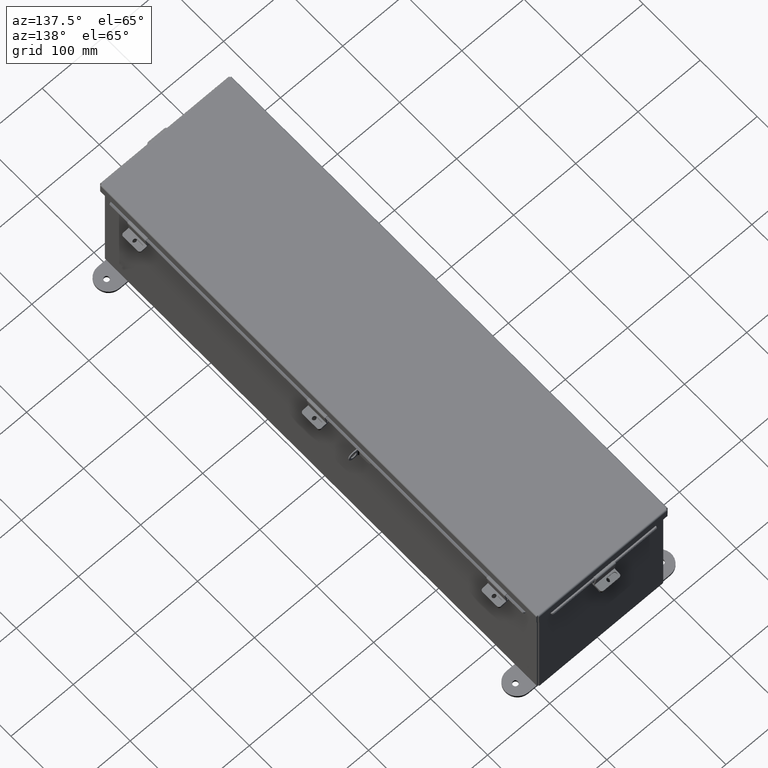
[diagram: clean part render]
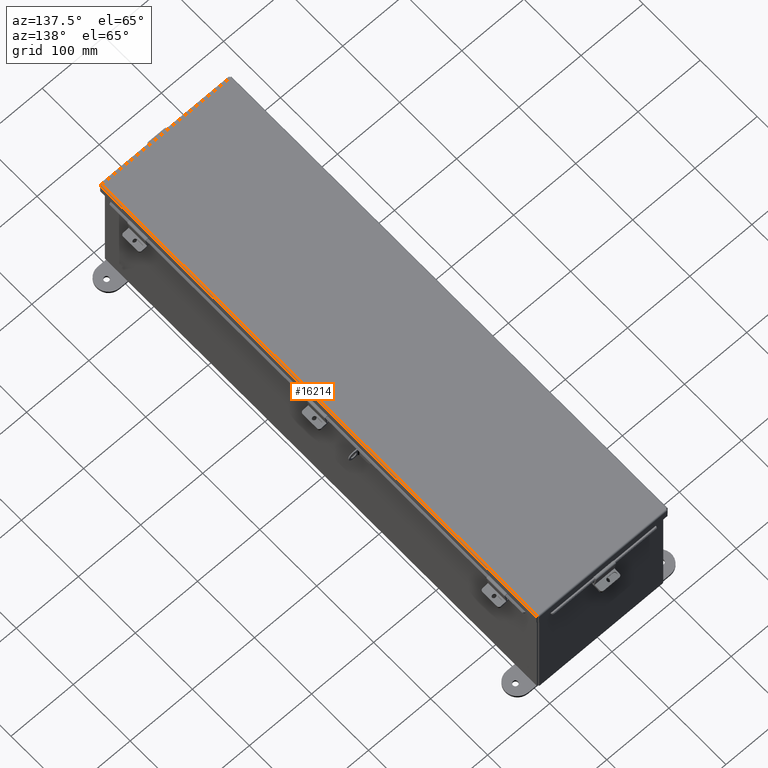
[diagram: same view with one face highlighted and labeled with its STEP entity id]
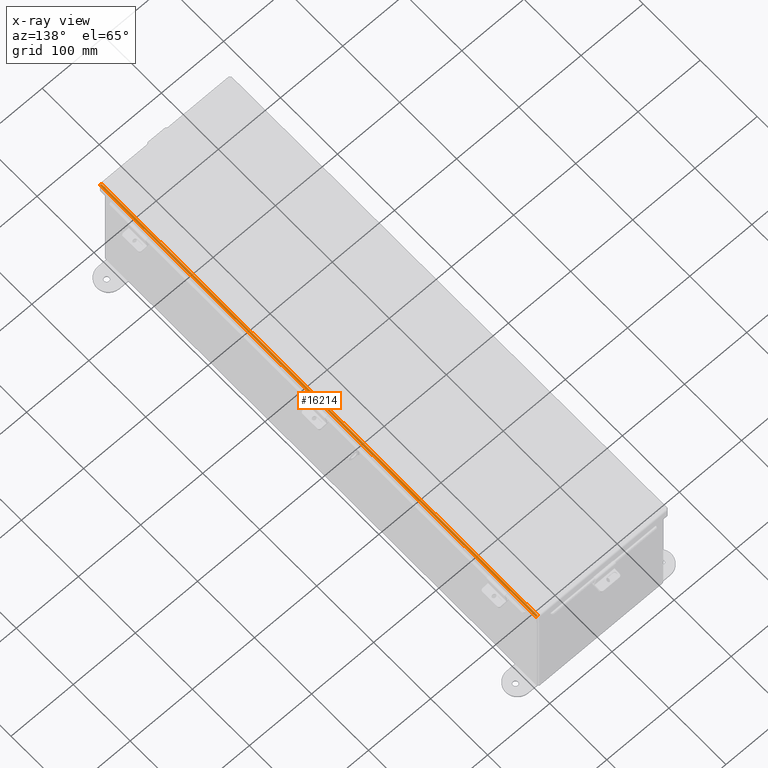
[diagram: x-ray of the same camera — body ghosted, the highlighted face saturated]
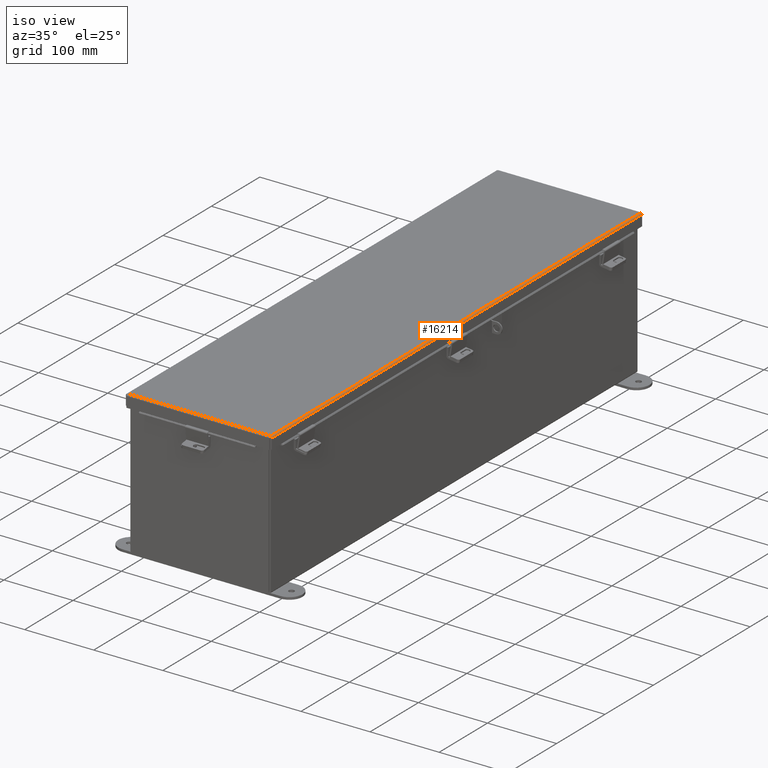
[diagram: same view with one face highlighted and labeled with its STEP entity id]
A machine part, auxiliary view. The second image highlights one B-rep face of the part: STEP entity #16214.
The next image is the same camera in x-ray: the body ghosted, the highlighted face saturated — about 0% of this face is hidden behind the body in this view.
A second angle (iso view) of the same face is appended — the face is thin or edge-on in the first view.
In plain terms, the highlighted cylindrical surface (edge-blend (fillet) strip) has radius 2.2276 mm, axis along (-0, -1, 0).
Its self-contained STEP definition (entity closure, byte-faithful):
#33 = ORIENTED_EDGE ( 'NONE', *, *, #11994, .F. ) ;
#225 = CARTESIAN_POINT ( 'NONE',  ( -4.145181066258694500, 15.07250262145875300, -0.03116738457852710100 ) ) ;
#848 = CARTESIAN_POINT ( 'NONE',  ( -4.068550000000025000, -15.07447893218813700, 0.01300000000000010700 ) ) ;
#860 = EDGE_CURVE ( 'NONE', #16839, #7646, #16909, .T. ) ;
#1313 = AXIS2_PLACEMENT_3D ( 'NONE', #848, #23114, #4922 ) ;
#2236 = CARTESIAN_POINT ( 'NONE',  ( -4.156250000000026600, 15.07398485450578800, 0.001520096845008771400 ) ) ;
#3184 = ORIENTED_EDGE ( 'NONE', *, *, #13069, .T. ) ;
#3831 = B_SPLINE_CURVE_WITH_KNOTS ( 'NONE', 3,
 ( #16733, #4659, #18767, #6672, #20816, #8707, #22844, #10727, #24898, #12728 ),
 .UNSPECIFIED., .F., .F.,
 ( 4, 2, 2, 2, 4 ),
 ( 0.0000000000000000000, 0.2500000000000000000, 0.5000000000000000000, 0.7500000000000000000, 1.000000000000000000 ),
 .UNSPECIFIED. ) ;
#3909 = DIRECTION ( 'NONE',  ( 1.013688269061339700E-029, 1.000000000000000000, 6.034785924940740300E-029 ) ) ;
#4556 = CYLINDRICAL_SURFACE ( 'NONE', #1313, 0.08770000000000026400 ) ;
#4659 = CARTESIAN_POINT ( 'NONE',  ( -4.156250000000024900, -15.07398485450579500, 0.001520096845005389300 ) ) ;
#4922 = DIRECTION ( 'NONE',  ( -1.000000000000000000, 0.0000000000000000000, -3.577373637655407700E-015 ) ) ;
#6608 = CARTESIAN_POINT ( 'NONE',  ( -4.156250000000025800, 15.07447893218813000, 0.01299999999999901400 ) ) ;
#6672 = CARTESIAN_POINT ( 'NONE',  ( -4.145181066258693600, -15.07250262145876000, -0.03116738457852922400 ) ) ;
#7461 = EDGE_LOOP ( 'NONE', ( #9685, #13623, #3184, #33 ) ) ;
#7646 = VERTEX_POINT ( 'NONE', #18291 ) ;
#7663 = EDGE_CURVE ( 'NONE', #11635, #16839, #3831, .T. ) ;
#8707 = CARTESIAN_POINT ( 'NONE',  ( -4.122445747341824800, -15.07102038841172800, -0.05713078207832117400 ) ) ;
#9685 = ORIENTED_EDGE ( 'NONE', *, *, #860, .F. ) ;
#9792 = DIRECTION ( 'NONE',  ( 1.007236642945046100E-029, 1.000000000000000000, 1.802456408196888900E-017 ) ) ;
#10292 = CARTESIAN_POINT ( 'NONE',  ( -4.112717384578553000, 15.07052631072936900, -0.06363106625866843400 ) ) ;
#10727 = CARTESIAN_POINT ( 'NONE',  ( -4.091505289458334400, -15.06953815536469300, -0.07241740374381165600 ) ) ;
#10901 = VECTOR ( 'NONE', #3909, 39.37007874015748100 ) ;
#11635 = VERTEX_POINT ( 'NONE', #25635 ) ;
#11808 = CARTESIAN_POINT ( 'NONE',  ( -4.156250000000025800, 15.15624999999999500, 0.01299999999999901400 ) ) ;
#11994 = EDGE_CURVE ( 'NONE', #7646, #13443, #15981, .T. ) ;
#12310 = CARTESIAN_POINT ( 'NONE',  ( -4.138680782078346000, 15.07200854377640600, -0.04089574734179948800 ) ) ;
#12728 = CARTESIAN_POINT ( 'NONE',  ( -4.068550000000025000, -15.06855000000000400, -0.07470000000000015500 ) ) ;
#13069 = EDGE_CURVE ( 'NONE', #11635, #13443, #19232, .T. ) ;
#13443 = VERTEX_POINT ( 'NONE', #6608 ) ;
#13623 = ORIENTED_EDGE ( 'NONE', *, *, #7663, .F. ) ;
#13817 = VECTOR ( 'NONE', #9792, 39.37007874015748100 ) ;
#14325 = CARTESIAN_POINT ( 'NONE',  ( -4.153967403743838100, 15.07349077682344600, -0.009955289458307625300 ) ) ;
#15981 = B_SPLINE_CURVE_WITH_KNOTS ( 'NONE', 3,
 ( #18323, #16298, #22420, #10292, #24454, #12310, #225, #14325, #2236, #16389 ),
 .UNSPECIFIED., .F., .F.,
 ( 4, 2, 2, 2, 4 ),
 ( 0.0000000000000000000, 0.2500000000000000000, 0.5000000000000000000, 0.7500000000000000000, 1.000000000000000000 ),
 .UNSPECIFIED. ) ;
#16002 = CARTESIAN_POINT ( 'NONE',  ( -4.068550000000025000, -15.07447893218813700, -0.07470000000000015500 ) ) ;
#16214 = ADVANCED_FACE ( 'NONE', ( #26059 ), #4556, .T. ) ;
#16298 = CARTESIAN_POINT ( 'NONE',  ( -4.080029903155018000, 15.06904407768234000, -0.07470000000000034900 ) ) ;
#16389 = CARTESIAN_POINT ( 'NONE',  ( -4.156250000000025800, 15.07447893218813000, 0.01299999999999901400 ) ) ;
#16733 = CARTESIAN_POINT ( 'NONE',  ( -4.156250000000025800, -15.07447893218813700, 0.01299999999999901400 ) ) ;
#16839 = VERTEX_POINT ( 'NONE', #25383 ) ;
#16909 = LINE ( 'NONE', #16002, #10901 ) ;
#18291 = CARTESIAN_POINT ( 'NONE',  ( -4.068550000000025900, 15.06854999999999500, -0.07470000000000015500 ) ) ;
#18323 = CARTESIAN_POINT ( 'NONE',  ( -4.068550000000025900, 15.06854999999999500, -0.07470000000000015500 ) ) ;
#18767 = CARTESIAN_POINT ( 'NONE',  ( -4.153967403743836300, -15.07349077682345500, -0.009955289458310603900 ) ) ;
#19232 = LINE ( 'NONE', #11808, #13817 ) ;
#20816 = CARTESIAN_POINT ( 'NONE',  ( -4.138680782078345100, -15.07200854377641800, -0.04089574734180118100 ) ) ;
#22420 = CARTESIAN_POINT ( 'NONE',  ( -4.091505289458334400, 15.06953815536468800, -0.07241740374381154500 ) ) ;
#22844 = CARTESIAN_POINT ( 'NONE',  ( -4.112717384578552100, -15.07052631072938300, -0.06363106625866903100 ) ) ;
#23114 = DIRECTION ( 'NONE',  ( -1.013688269061339700E-029, -1.000000000000000000, -6.034785924940740300E-029 ) ) ;
#24454 = CARTESIAN_POINT ( 'NONE',  ( -4.122445747341825700, 15.07102038841172000, -0.05713078207832027200 ) ) ;
#24898 = CARTESIAN_POINT ( 'NONE',  ( -4.080029903155018000, -15.06904407768234900, -0.07470000000000036300 ) ) ;
#25383 = CARTESIAN_POINT ( 'NONE',  ( -4.068550000000025000, -15.06855000000000400, -0.07470000000000015500 ) ) ;
#25635 = CARTESIAN_POINT ( 'NONE',  ( -4.156250000000025800, -15.07447893218813700, 0.01299999999999901400 ) ) ;
#26059 = FACE_OUTER_BOUND ( 'NONE', #7461, .T. ) ;